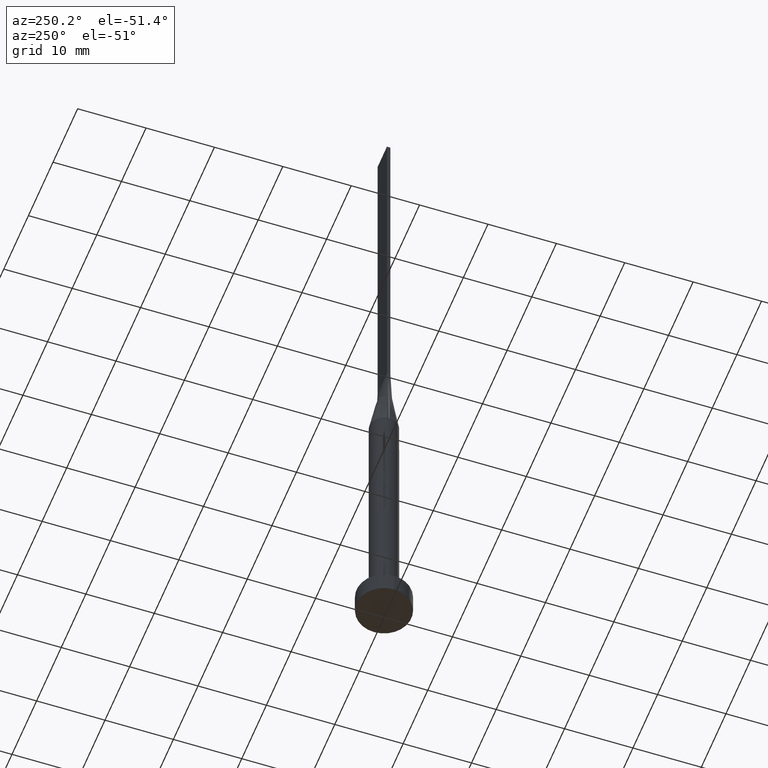
[diagram: clean part render]
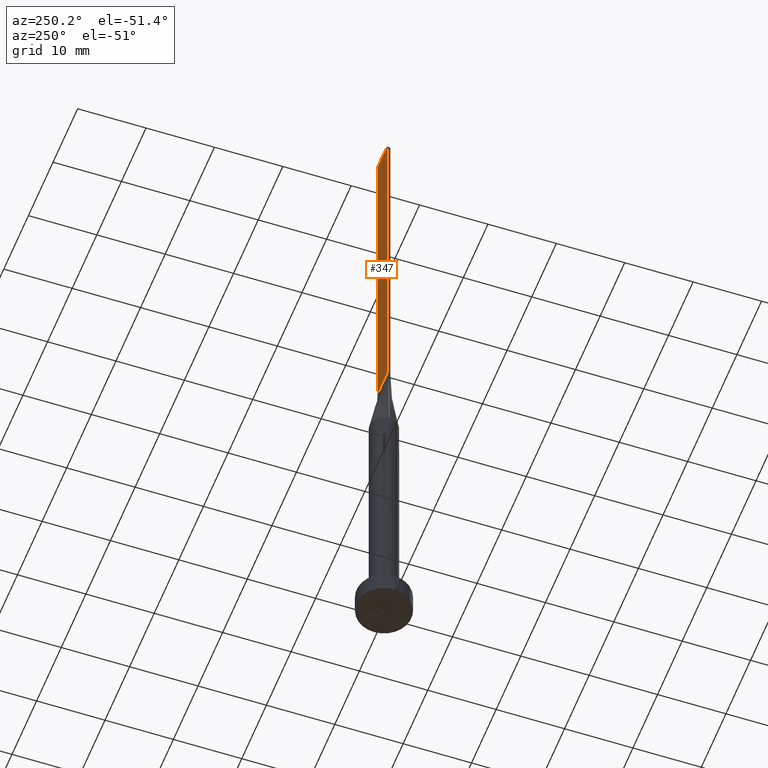
[diagram: same view with one face highlighted and labeled with its STEP entity id]
A machine part, auxiliary view. The second image highlights one B-rep face of the part: STEP entity #347.
In plain terms, the highlighted planar face has unit normal (0, -1, 0).
Its self-contained STEP definition (entity closure, byte-faithful):
#1 = VECTOR ( 'NONE', #40, 1000.000000000000000 ) ;
#7 = CARTESIAN_POINT ( 'NONE',  ( -1.899999999999999911, 0.2500000000000002220, 50.00000000000000000 ) ) ;
#19 = VERTEX_POINT ( 'NONE', #36 ) ;
#23 = VERTEX_POINT ( 'NONE', #221 ) ;
#31 = CARTESIAN_POINT ( 'NONE',  ( 1.899999999999999911, 0.2500000000000002220, 100.0000000000000000 ) ) ;
#32 = VERTEX_POINT ( 'NONE', #407 ) ;
#36 = CARTESIAN_POINT ( 'NONE',  ( 1.899999999999999911, 0.2500000000000002220, 100.0000000000000000 ) ) ;
#40 = DIRECTION ( 'NONE',  ( -1.000000000000000000, -0.000000000000000000, -0.000000000000000000 ) ) ;
#49 = DIRECTION ( 'NONE',  ( 0.000000000000000000, -0.000000000000000000, -1.000000000000000000 ) ) ;
#91 = PLANE ( 'NONE',  #504 ) ;
#104 = ORIENTED_EDGE ( 'NONE', *, *, #355, .T. ) ;
#134 = CARTESIAN_POINT ( 'NONE',  ( 1.899999999999999911, 0.2500000000000002220, 100.0000000000000000 ) ) ;
#146 = CARTESIAN_POINT ( 'NONE',  ( -1.899999999999999911, 0.2500000000000002220, 50.00000000000000000 ) ) ;
#153 = EDGE_LOOP ( 'NONE', ( #104, #263, #579, #427 ) ) ;
#195 = VECTOR ( 'NONE', #544, 1000.000000000000000 ) ;
#221 = CARTESIAN_POINT ( 'NONE',  ( 1.899999999999999911, 0.2500000000000002220, 50.00000000000000000 ) ) ;
#230 = EDGE_CURVE ( 'NONE', #32, #476, #300, .T. ) ;
#244 = EDGE_CURVE ( 'NONE', #19, #23, #301, .T. ) ;
#254 = CARTESIAN_POINT ( 'NONE',  ( -1.899999999999999911, 0.2500000000000002220, 100.0000000000000000 ) ) ;
#263 = ORIENTED_EDGE ( 'NONE', *, *, #230, .F. ) ;
#265 = FACE_OUTER_BOUND ( 'NONE', #153, .T. ) ;
#276 = CARTESIAN_POINT ( 'NONE',  ( 1.899999999999999911, 0.2500000000000002220, 100.0000000000000000 ) ) ;
#279 = DIRECTION ( 'NONE',  ( -0.000000000000000000, -0.000000000000000000, -1.000000000000000000 ) ) ;
#300 = LINE ( 'NONE', #254, #411 ) ;
#301 = LINE ( 'NONE', #31, #455 ) ;
#343 = DIRECTION ( 'NONE',  ( -0.000000000000000000, -0.000000000000000000, -1.000000000000000000 ) ) ;
#347 = ADVANCED_FACE ( 'NONE', ( #265 ), #91, .F. ) ;
#355 = EDGE_CURVE ( 'NONE', #23, #476, #541, .T. ) ;
#407 = CARTESIAN_POINT ( 'NONE',  ( -1.899999999999999911, 0.2500000000000002220, 100.0000000000000000 ) ) ;
#411 = VECTOR ( 'NONE', #343, 1000.000000000000000 ) ;
#422 = EDGE_CURVE ( 'NONE', #19, #32, #495, .T. ) ;
#427 = ORIENTED_EDGE ( 'NONE', *, *, #244, .T. ) ;
#455 = VECTOR ( 'NONE', #279, 1000.000000000000000 ) ;
#456 = DIRECTION ( 'NONE',  ( 0.000000000000000000, -1.000000000000000000, 0.000000000000000000 ) ) ;
#476 = VERTEX_POINT ( 'NONE', #146 ) ;
#495 = LINE ( 'NONE', #134, #195 ) ;
#504 = AXIS2_PLACEMENT_3D ( 'NONE', #276, #456, #49 ) ;
#541 = LINE ( 'NONE', #7, #1 ) ;
#544 = DIRECTION ( 'NONE',  ( -1.000000000000000000, 0.000000000000000000, 0.000000000000000000 ) ) ;
#579 = ORIENTED_EDGE ( 'NONE', *, *, #422, .F. ) ;